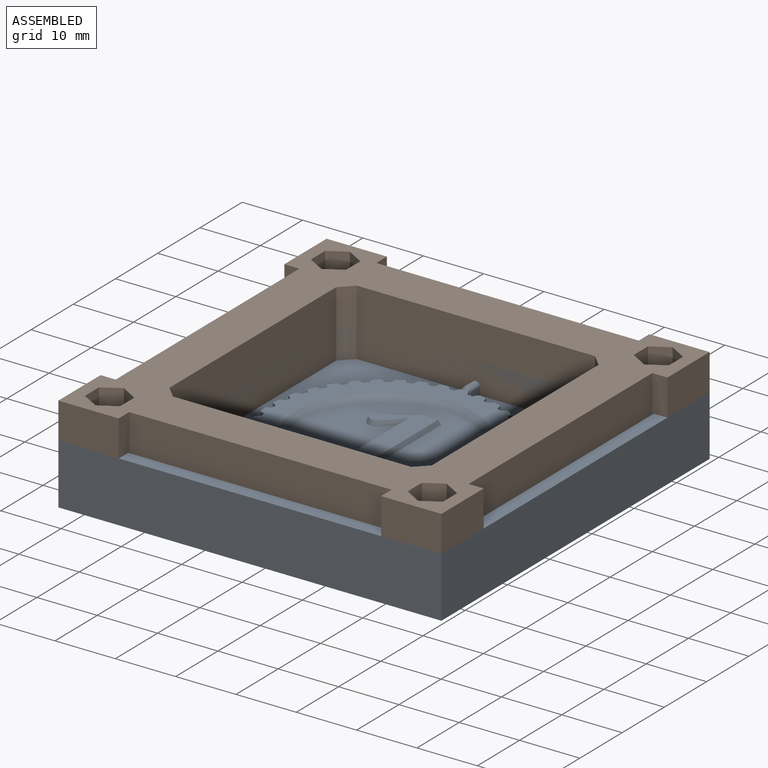
[diagram: assembled view]
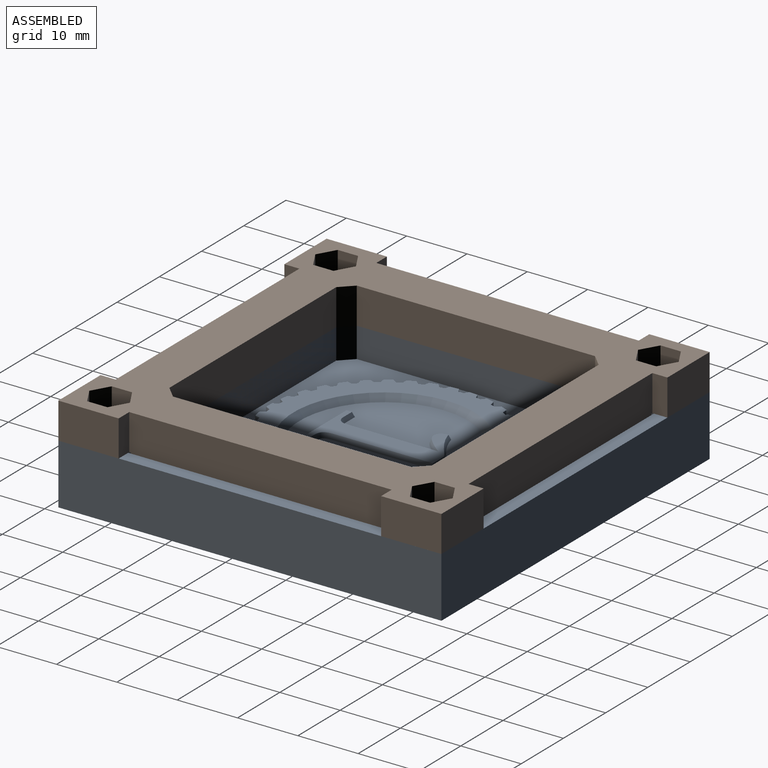
[diagram: assembled view, second angle]
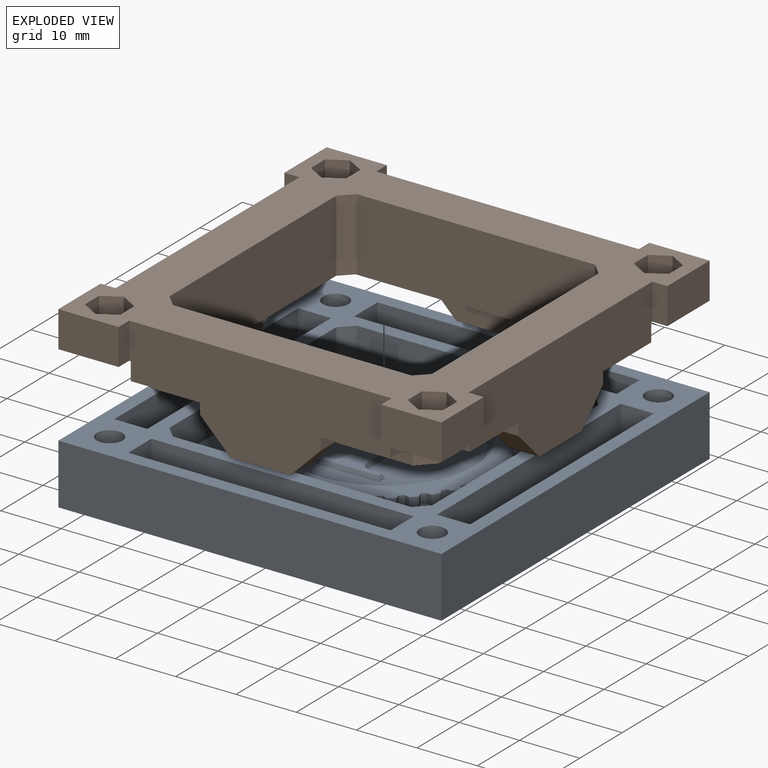
[diagram: exploded view]
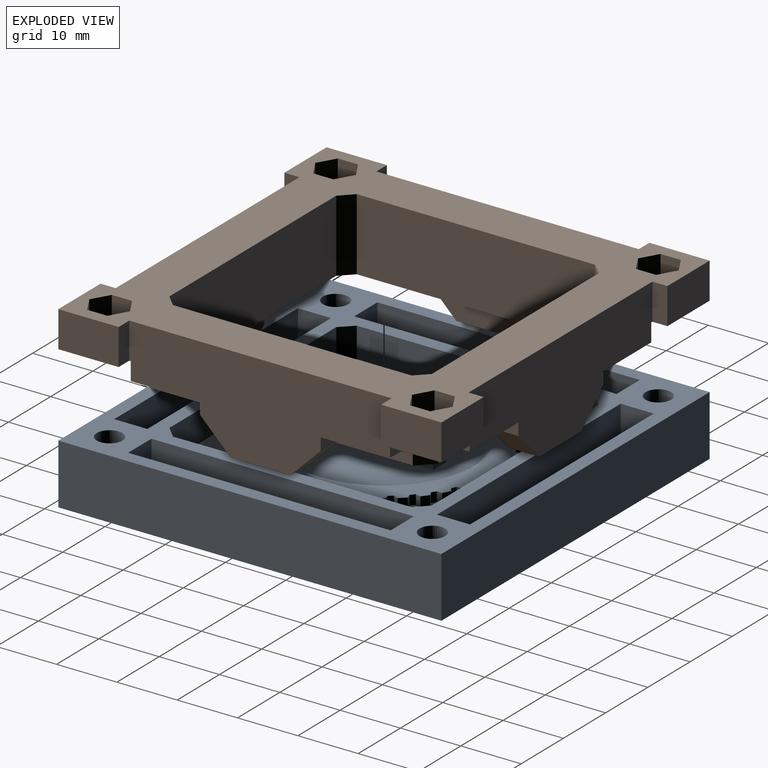
[diagram: exploded view, second angle]
ASSEMBLY  parts=2 mates=3
PART A: 247 faces, bbox 63.8x63.8x10.3 mm
  f0: plane 38.89x38.36mm, normal (0,0,1), area 393.5mm2, adj f1,f2,f10,f11,f12,f13,f14,f15
  f1: plane 1.6x0.82mm, normal (0.9,0.43,0), area 1.4mm2, adj f0,f9,f145,f246
  f2: cylinder r=0.68mm len=2.37mm, axis (0,-1,0), area 2.4mm2, adj f0,f194,f237,f238,f240,f245
  f3: plane 11.5x5.5mm, normal (0,0,1), area 63.2mm2, adj f221,f222,f223,f229
  f4: plane 11.5x5.5mm, normal (0,0,1), area 63.2mm2, adj f222,f223,f224,f230
  f5: plane 11.5x5.5mm, normal (0,0,1), area 63.2mm2, adj f216,f217,f218,f231
  f6: plane 11.5x5.5mm, normal (0,0,1), area 63.2mm2, adj f217,f218,f219,f232
  f7: plane 11.5x5.5mm, normal (0,0,1), area 63.2mm2, adj f211,f212,f213,f234
  f8: plane 11.5x5.5mm, normal (0,0,1), area 63.2mm2, adj f212,f213,f214,f233
  f9: plane 43.5x43.5mm, normal (0,0,1), area 780.5mm2, adj f1,f10,f11,f12,f13,f14,f15,f16
  f10: plane 1.6x0.78mm, normal (0.5,-0.87,0), area 1.4mm2, adj f0,f9,f121,f159
  f11: plane 1.6x0.78mm, normal (0.5,0.87,0), area 1.4mm2, adj f0,f9,f120,f159
  f12: plane 1.6x0.85mm, normal (0.35,-0.94,0), area 1.4mm2, adj f0,f9,f120,f158
  f13: plane 1.6x0.7mm, normal (0.64,0.77,0), area 1.4mm2, adj f0,f9,f119,f158
  f14: plane 1.6x0.89mm, normal (0.19,-0.98,0), area 1.4mm2, adj f0,f9,f119,f157
  f15: plane 1.6x0.68mm, normal (0.75,0.66,0), area 1.4mm2, adj f0,f9,f118,f157
  f16: plane 1.6x0.91mm, normal (0.03,-1,0), area 1.4mm2, adj f0,f9,f118,f156
  f17: plane 1.6x0.77mm, normal (0.85,0.52,0), area 1.4mm2, adj f0,f9,f116,f156
  f18: plane 1.6x0.86mm, normal (-0.3,-0.95,0), area 1.4mm2, adj f0,f9,f117,f155
  f19: plane 1.6x0.88mm, normal (0.98,0.22,0), area 1.4mm2, adj f0,f9,f85,f155
  f20: plane 1.6x0.9mm, normal (-0.14,-0.99,0), area 1.4mm2, adj f0,f9,f116,f154
  f21: plane 1.6x0.84mm, normal (0.93,0.38,0), area 1.4mm2, adj f0,f9,f117,f154
  f22: plane 1.6x0.87mm, normal (0.96,0.27,0), area 1.4mm2, adj f0,f9,f115,f153
  f23: plane 1.6x0.65mm, normal (-0.72,0.7,0), area 1.4mm2, adj f0,f9,f114,f153
  f24: plane 1.6x0.9mm, normal (0.99,0.11,0), area 1.4mm2, adj f0,f9,f114,f152
  f25: plane 1.6x0.73mm, normal (-0.59,0.81,0), area 1.4mm2, adj f0,f9,f113,f152
  f26: plane 1.6x0.9mm, normal (1,-0.06,0), area 1.4mm2, adj f0,f9,f113,f151
  f27: plane 1.6x0.81mm, normal (-0.45,0.89,0), area 1.4mm2, adj f0,f9,f112,f151
  f28: plane 1.6x0.88mm, normal (0.98,-0.22,0), area 1.4mm2, adj f0,f9,f112,f150
  f29: plane 1.6x0.86mm, normal (-0.3,0.95,0), area 1.4mm2, adj f0,f9,f111,f150
  f30: plane 1.6x0.84mm, normal (0.93,-0.38,0), area 1.4mm2, adj f0,f9,f111,f149
  f31: plane 1.6x0.9mm, normal (-0.14,0.99,0), area 1.4mm2, adj f0,f9,f110,f149
  f32: plane 1.6x0.77mm, normal (0.85,-0.52,0), area 1.4mm2, adj f0,f9,f110,f148
  f33: plane 1.6x0.91mm, normal (0.03,1,0), area 1.4mm2, adj f0,f9,f109,f148
  f34: plane 1.6x0.68mm, normal (0.75,-0.66,0), area 1.4mm2, adj f0,f9,f109,f147
  f35: plane 1.6x0.89mm, normal (0.19,0.98,0), area 1.4mm2, adj f0,f9,f108,f147
  f36: plane 1.6x0.7mm, normal (0.64,-0.77,0), area 1.4mm2, adj f0,f9,f108,f146
  f37: plane 1.6x0.85mm, normal (0.35,0.94,0), area 1.4mm2, adj f0,f9,f121,f146
  f38: plane 1.6x0.74mm, normal (-0.82,0.57,0), area 1.4mm2, adj f0,f9,f115,f145
  f39: plane 1.6x0.74mm, normal (0.82,0.57,0), area 1.4mm2, adj f0,f9,f107,f144
  f40: plane 1.6x0.82mm, normal (-0.9,0.43,0), area 1.4mm2, adj f0,f9,f144,f244
  f41: plane 1.6x0.65mm, normal (0.72,0.7,0), area 1.4mm2, adj f0,f9,f106,f143
  f42: plane 1.6x0.87mm, normal (-0.96,0.27,0), area 1.4mm2, adj f0,f9,f107,f143
  f43: plane 1.6x0.73mm, normal (0.59,0.81,0), area 1.4mm2, adj f0,f9,f105,f142
  f44: plane 1.6x0.9mm, normal (-0.99,0.11,0), area 1.4mm2, adj f0,f9,f106,f142
  f45: plane 1.6x0.91mm, normal (-0.03,1,0), area 1.4mm2, adj f0,f9,f104,f141
  f46: plane 1.6x0.77mm, normal (-0.85,-0.52,0), area 1.4mm2, adj f0,f9,f103,f141
  f47: plane 1.6x0.9mm, normal (0.14,0.99,0), area 1.4mm2, adj f0,f9,f103,f140
  f48: plane 1.6x0.84mm, normal (-0.93,-0.38,0), area 1.4mm2, adj f0,f9,f102,f140
  f49: plane 1.6x0.86mm, normal (0.3,0.95,0), area 1.4mm2, adj f0,f9,f102,f139
  f50: plane 1.6x0.88mm, normal (-0.98,-0.22,0), area 1.4mm2, adj f0,f9,f101,f139
  f51: plane 1.6x0.81mm, normal (0.45,0.89,0), area 1.4mm2, adj f0,f9,f101,f138
  f52: plane 1.6x0.9mm, normal (-1,-0.06,0), area 1.4mm2, adj f0,f9,f105,f138
  f53: plane 1.6x0.89mm, normal (-0.19,0.98,0), area 1.4mm2, adj f0,f9,f100,f137
  f54: plane 1.6x0.68mm, normal (-0.75,-0.66,0), area 1.4mm2, adj f0,f9,f104,f137
  f55: plane 1.6x0.85mm, normal (-0.35,0.94,0), area 1.4mm2, adj f0,f9,f99,f136
  f56: plane 1.6x0.7mm, normal (-0.64,-0.77,0), area 1.4mm2, adj f0,f9,f100,f136
  f57: plane 1.6x0.78mm, normal (-0.5,0.87,0), area 1.4mm2, adj f0,f9,f98,f135
  f58: plane 1.6x0.78mm, normal (-0.5,-0.87,0), area 1.4mm2, adj f0,f9,f99,f135
  f59: plane 1.6x0.7mm, normal (-0.64,0.77,0), area 1.4mm2, adj f0,f9,f97,f134
  f60: plane 1.6x0.85mm, normal (-0.35,-0.94,0), area 1.4mm2, adj f0,f9,f98,f134
  f61: plane 1.6x0.68mm, normal (-0.75,0.66,0), area 1.4mm2, adj f0,f9,f96,f133
  f62: plane 1.6x0.89mm, normal (-0.19,-0.98,0), area 1.4mm2, adj f0,f9,f97,f133
  f63: plane 1.6x0.77mm, normal (-0.85,0.52,0), area 1.4mm2, adj f0,f9,f95,f132
  f64: plane 1.6x0.91mm, normal (-0.03,-1,0), area 1.4mm2, adj f0,f9,f96,f132
  f65: plane 1.6x0.88mm, normal (-0.98,0.22,0), area 1.4mm2, adj f0,f9,f94,f131
  f66: plane 1.6x0.86mm, normal (0.3,-0.95,0), area 1.4mm2, adj f0,f9,f93,f131
  f67: plane 1.6x0.84mm, normal (-0.93,0.38,0), area 1.4mm2, adj f0,f9,f93,f130
  f68: plane 1.6x0.9mm, normal (0.14,-0.99,0), area 1.4mm2, adj f0,f9,f95,f130
  f69: plane 1.6x0.9mm, normal (-1,0.06,0), area 1.4mm2, adj f0,f9,f92,f129
  f70: plane 1.6x0.81mm, normal (0.45,-0.89,0), area 1.4mm2, adj f0,f9,f94,f129
  f71: plane 1.6x0.9mm, normal (-0.99,-0.11,0), area 1.4mm2, adj f0,f9,f91,f128
  f72: plane 1.6x0.73mm, normal (0.59,-0.81,0), area 1.4mm2, adj f0,f9,f92,f128
  f73: plane 1.6x0.87mm, normal (-0.96,-0.27,0), area 1.4mm2, adj f0,f9,f90,f127
  f74: plane 1.6x0.65mm, normal (0.72,-0.7,0), area 1.4mm2, adj f0,f9,f91,f127
  f75: plane 1.6x0.82mm, normal (-0.9,-0.43,0), area 1.4mm2, adj f0,f9,f89,f126
  f76: plane 1.6x0.74mm, normal (0.82,-0.57,0), area 1.4mm2, adj f0,f9,f90,f126
  f77: plane 1.6x0.74mm, normal (-0.82,-0.57,0), area 1.4mm2, adj f0,f9,f88,f125
  f78: plane 1.6x0.82mm, normal (0.9,-0.43,0), area 1.4mm2, adj f0,f9,f89,f125
  f79: plane 1.6x0.65mm, normal (-0.72,-0.7,0), area 1.4mm2, adj f0,f9,f87,f124
  f80: plane 1.6x0.87mm, normal (0.96,-0.27,0), area 1.4mm2, adj f0,f9,f88,f124
  f81: plane 1.6x0.73mm, normal (-0.59,-0.81,0), area 1.4mm2, adj f0,f9,f86,f123
  f82: plane 1.6x0.9mm, normal (0.99,-0.11,0), area 1.4mm2, adj f0,f9,f87,f123
  f83: plane 1.6x0.81mm, normal (-0.45,-0.89,0), area 1.4mm2, adj f0,f9,f85,f122
  f84: plane 1.6x0.9mm, normal (1,0.06,0), area 1.4mm2, adj f0,f9,f86,f122
  f85: cylinder r=19.05mm len=1.6mm, axis (0,0,-1), area 2.2mm2, adj f0,f9,f19,f83
  f86: cylinder r=19.05mm len=1.6mm, axis (0,0,-1), area 2.2mm2, adj f0,f9,f81,f84
  f87: cylinder r=19.05mm len=1.6mm, axis (0,0,-1), area 2.2mm2, adj f0,f9,f79,f82
  f88: cylinder r=19.05mm len=1.6mm, axis (0,0,-1), area 2.2mm2, adj f0,f9,f77,f80
  f89: cylinder r=19.05mm len=1.6mm, axis (0,0,-1), area 2.2mm2, adj f0,f9,f75,f78
  f90: cylinder r=19.05mm len=1.6mm, axis (0,0,-1), area 2.2mm2, adj f0,f9,f73,f76
  f91: cylinder r=19.05mm len=1.6mm, axis (0,0,-1), area 2.2mm2, adj f0,f9,f71,f74
  f92: cylinder r=19.05mm len=1.6mm, axis (0,0,-1), area 2.2mm2, adj f0,f9,f69,f72
  f93: cylinder r=19.05mm len=1.6mm, axis (0,0,-1), area 2.2mm2, adj f0,f9,f66,f67
  f94: cylinder r=19.05mm len=1.6mm, axis (0,0,-1), area 2.2mm2, adj f0,f9,f65,f70
  f95: cylinder r=19.05mm len=1.6mm, axis (0,0,-1), area 2.2mm2, adj f0,f9,f63,f68
  f96: cylinder r=19.05mm len=1.6mm, axis (0,0,-1), area 2.2mm2, adj f0,f9,f61,f64
  f97: cylinder r=19.05mm len=1.6mm, axis (0,0,-1), area 2.2mm2, adj f0,f9,f59,f62
  f98: cylinder r=19.05mm len=1.6mm, axis (0,0,-1), area 2.2mm2, adj f0,f9,f57,f60
  f99: cylinder r=19.05mm len=1.6mm, axis (0,0,-1), area 2.2mm2, adj f0,f9,f55,f58
  f100: cylinder r=19.05mm len=1.6mm, axis (0,0,-1), area 2.2mm2, adj f0,f9,f53,f56
  f101: cylinder r=19.05mm len=1.6mm, axis (0,0,-1), area 2.2mm2, adj f0,f9,f50,f51
  f102: cylinder r=19.05mm len=1.6mm, axis (0,0,-1), area 2.2mm2, adj f0,f9,f48,f49
  f103: cylinder r=19.05mm len=1.6mm, axis (0,0,-1), area 2.2mm2, adj f0,f9,f46,f47
  f104: cylinder r=19.05mm len=1.6mm, axis (0,0,-1), area 2.2mm2, adj f0,f9,f45,f54
  f105: cylinder r=19.05mm len=1.6mm, axis (0,0,-1), area 2.2mm2, adj f0,f9,f43,f52
  f106: cylinder r=19.05mm len=1.6mm, axis (0,0,-1), area 2.2mm2, adj f0,f9,f41,f44
  f107: cylinder r=19.05mm len=1.6mm, axis (0,0,-1), area 2.2mm2, adj f0,f9,f39,f42
  f108: cylinder r=19.05mm len=1.6mm, axis (0,0,-1), area 2.2mm2, adj f0,f9,f35,f36
  f109: cylinder r=19.05mm len=1.6mm, axis (0,0,-1), area 2.2mm2, adj f0,f9,f33,f34
  f110: cylinder r=19.05mm len=1.6mm, axis (0,0,-1), area 2.2mm2, adj f0,f9,f31,f32
  f111: cylinder r=19.05mm len=1.6mm, axis (0,0,-1), area 2.2mm2, adj f0,f9,f29,f30
  f112: cylinder r=19.05mm len=1.6mm, axis (0,0,-1), area 2.2mm2, adj f0,f9,f27,f28
  f113: cylinder r=19.05mm len=1.6mm, axis (0,0,-1), area 2.2mm2, adj f0,f9,f25,f26
  f114: cylinder r=19.05mm len=1.6mm, axis (0,0,-1), area 2.2mm2, adj f0,f9,f23,f24
  f115: cylinder r=19.05mm len=1.6mm, axis (0,0,-1), area 2.2mm2, adj f0,f9,f22,f38
  f116: cylinder r=19.05mm len=1.6mm, axis (0,0,-1), area 2.2mm2, adj f0,f9,f17,f20
  f117: cylinder r=19.05mm len=1.6mm, axis (0,0,-1), area 2.2mm2, adj f0,f9,f18,f21
  f118: cylinder r=19.05mm len=1.6mm, axis (0,0,-1), area 2.2mm2, adj f0,f9,f15,f16
  f119: cylinder r=19.05mm len=1.6mm, axis (0,0,-1), area 2.2mm2, adj f0,f9,f13,f14
  f120: cylinder r=19.05mm len=1.6mm, axis (0,0,-1), area 2.2mm2, adj f0,f9,f11,f12
  f121: cylinder r=19.05mm len=1.6mm, axis (0,0,-1), area 2.2mm2, adj f0,f9,f10,f37
  f122: cylinder r=18.25mm len=1.6mm, axis (0,0,-1), area 1.4mm2, adj f0,f9,f83,f84
  f123: cylinder r=18.25mm len=1.6mm, axis (0,0,-1), area 1.4mm2, adj f0,f9,f81,f82
  f124: cylinder r=18.25mm len=1.6mm, axis (0,0,-1), area 1.4mm2, adj f0,f9,f79,f80
  f125: cylinder r=18.25mm len=1.6mm, axis (0,0,-1), area 1.4mm2, adj f0,f9,f77,f78
  f126: cylinder r=18.25mm len=1.6mm, axis (0,0,-1), area 1.4mm2, adj f0,f9,f75,f76
  f127: cylinder r=18.25mm len=1.6mm, axis (0,0,-1), area 1.4mm2, adj f0,f9,f73,f74
  f128: cylinder r=18.25mm len=1.6mm, axis (0,0,-1), area 1.4mm2, adj f0,f9,f71,f72
  f129: cylinder r=18.25mm len=1.6mm, axis (0,0,-1), area 1.4mm2, adj f0,f9,f69,f70
  f130: cylinder r=18.25mm len=1.6mm, axis (0,0,-1), area 1.4mm2, adj f0,f9,f67,f68
  f131: cylinder r=18.25mm len=1.6mm, axis (0,0,-1), area 1.4mm2, adj f0,f9,f65,f66
  f132: cylinder r=18.25mm len=1.6mm, axis (0,0,-1), area 1.4mm2, adj f0,f9,f63,f64
  f133: cylinder r=18.25mm len=1.6mm, axis (0,0,-1), area 1.4mm2, adj f0,f9,f61,f62
  f134: cylinder r=18.25mm len=1.6mm, axis (0,0,-1), area 1.4mm2, adj f0,f9,f59,f60
  f135: cylinder r=18.25mm len=1.6mm, axis (0,0,-1), area 1.4mm2, adj f0,f9,f57,f58
  f136: cylinder r=18.25mm len=1.6mm, axis (0,0,-1), area 1.4mm2, adj f0,f9,f55,f56
  f137: cylinder r=18.25mm len=1.6mm, axis (0,0,-1), area 1.4mm2, adj f0,f9,f53,f54
  f138: cylinder r=18.25mm len=1.6mm, axis (0,0,-1), area 1.4mm2, adj f0,f9,f51,f52
  f139: cylinder r=18.25mm len=1.6mm, axis (0,0,-1), area 1.4mm2, adj f0,f9,f49,f50
  f140: cylinder r=18.25mm len=1.6mm, axis (0,0,-1), area 1.4mm2, adj f0,f9,f47,f48
  f141: cylinder r=18.25mm len=1.6mm, axis (0,0,-1), area 1.4mm2, adj f0,f9,f45,f46
  f142: cylinder r=18.25mm len=1.6mm, axis (0,0,-1), area 1.4mm2, adj f0,f9,f43,f44
  f143: cylinder r=18.25mm len=1.6mm, axis (0,0,-1), area 1.4mm2, adj f0,f9,f41,f42
  f144: cylinder r=18.25mm len=1.6mm, axis (0,0,-1), area 1.4mm2, adj f0,f9,f39,f40
  f145: cylinder r=18.25mm len=1.6mm, axis (0,0,-1), area 1.4mm2, adj f0,f1,f9,f38
  f146: cylinder r=18.25mm len=1.6mm, axis (0,0,-1), area 1.4mm2, adj f0,f9,f36,f37
  f147: cylinder r=18.25mm len=1.6mm, axis (0,0,-1), area 1.4mm2, adj f0,f9,f34,f35
  f148: cylinder r=18.25mm len=1.6mm, axis (0,0,-1), area 1.4mm2, adj f0,f9,f32,f33
  f149: cylinder r=18.25mm len=1.6mm, axis (0,0,-1), area 1.4mm2, adj f0,f9,f30,f31
  f150: cylinder r=18.25mm len=1.6mm, axis (0,0,-1), area 1.4mm2, adj f0,f9,f28,f29
  f151: cylinder r=18.25mm len=1.6mm, axis (0,0,-1), area 1.4mm2, adj f0,f9,f26,f27
  f152: cylinder r=18.25mm len=1.6mm, axis (0,0,-1), area 1.4mm2, adj f0,f9,f24,f25
  f153: cylinder r=18.25mm len=1.6mm, axis (0,0,-1), area 1.4mm2, adj f0,f9,f22,f23
  f154: cylinder r=18.25mm len=1.6mm, axis (0,0,-1), area 1.4mm2, adj f0,f9,f20,f21
  f155: cylinder r=18.25mm len=1.6mm, axis (0,0,-1), area 1.4mm2, adj f0,f9,f18,f19
  f156: cylinder r=18.25mm len=1.6mm, axis (0,0,-1), area 1.4mm2, adj f0,f9,f16,f17
  f157: cylinder r=18.25mm len=1.6mm, axis (0,0,-1), area 1.4mm2, adj f0,f9,f14,f15
  f158: cylinder r=18.25mm len=1.6mm, axis (0,0,-1), area 1.4mm2, adj f0,f9,f12,f13
  f159: cylinder r=18.25mm len=1.6mm, axis (0,0,-1), area 1.4mm2, adj f0,f9,f10,f11
  f160: plane 28.09x28.09mm, normal (0,0,1), area 509.9mm2, adj f161,f162,f163,f164,f165,f166,f167,f168
  f161: cone r=14mm half-angle=45deg, axis (0,0,1), area 128.8mm2, adj f0,f160
  f162: plane 1.48x0.8mm, normal (-0.94,0,0.34), area 1mm2, adj f160,f163,f190,f191
  f163: plane 11.46x0.8mm, normal (0,-0.94,0.34), area 9.5mm2, adj f160,f162,f164,f191
  f164: plane 1.48x0.8mm, normal (0.94,0,0.34), area 1mm2, adj f160,f163,f165,f191
  f165: plane 2.24x0.8mm, normal (0,0.94,0.34), area 1.8mm2, adj f160,f164,f166,f191
  f166: bspline ~0.96x0.85mm, area 0.7mm2, adj f160,f165,f167,f191
  f167: bspline ~0.96x0.72mm, area 0.6mm2, adj f160,f166,f168,f191
  f168: bspline ~0.96x0.77mm, area 0.6mm2, adj f160,f167,f169,f191
  f169: bspline ~0.96x0.83mm, area 0.7mm2, adj f160,f168,f170,f191
  f170: plane 16.66x0.8mm, normal (0.94,0,0.34), area 14.1mm2, adj f160,f169,f171,f191
  f171: plane 3.11x0.8mm, normal (0,0.94,0.34), area 2.5mm2, adj f160,f170,f172,f191
  f172: plane 2.08x1.7mm, normal (-0.56,0.76,0.34), area 2mm2, adj f160,f171,f173,f191
  f173: bspline ~1.51x1.17mm, area 1.3mm2, adj f160,f172,f174,f191
  f174: bspline ~1.3x0.96mm, area 1.1mm2, adj f160,f173,f175,f191
  f175: bspline ~1.13x0.96mm, area 0.9mm2, adj f160,f174,f176,f191
  f176: bspline ~0.99x0.96mm, area 0.7mm2, adj f160,f175,f177,f191
  f177: bspline ~0.96x0.84mm, area 0.6mm2, adj f160,f176,f178,f191
  f178: bspline ~0.96x0.76mm, area 0.6mm2, adj f160,f177,f179,f191
  f179: bspline ~0.96x0.66mm, area 0.5mm2, adj f160,f178,f180,f191
  f180: bspline ~0.96x0.63mm, area 0.5mm2, adj f160,f179,f181,f191
  f181: bspline ~0.96x0.83mm, area 0.7mm2, adj f160,f180,f182,f191
  f182: bspline ~1.01x0.96mm, area 0.9mm2, adj f160,f181,f183,f191
  f183: bspline ~1.14x1.13mm, area 1.1mm2, adj f160,f182,f184,f191
  f184: bspline ~2.05x1.79mm, area 1.7mm2, adj f160,f183,f185,f191
  f185: plane 14.74x0.8mm, normal (-0.94,0,0.34), area 12.2mm2, adj f160,f184,f186,f191
  f186: bspline ~0.96x0.96mm, area 0.8mm2, adj f160,f185,f187,f191
  f187: bspline ~0.96x0.78mm, area 0.6mm2, adj f160,f186,f188,f191
  f188: bspline ~0.96x0.7mm, area 0.5mm2, adj f160,f187,f189,f191
  f189: bspline ~0.96x0.72mm, area 0.6mm2, adj f160,f188,f190,f191
  f190: plane 2.28x0.8mm, normal (0,0.94,0.34), area 1.8mm2, adj f160,f162,f189,f191
  f191: plane 19.48x12.52mm, normal (0,0,1), area 84.9mm2, adj f162,f163,f164,f165,f166,f167,f168,f169
  f192: plane 39.5x5mm, normal (1,0,0), area 197.5mm2, adj f9,f193,f199,f235
  f193: plane 5x2mm, normal (0.71,-0.71,0), area 14.1mm2, adj f9,f192,f194,f235
  f194: plane 39.5x5mm, normal (0,-1,0), area 194.9mm2, adj f2,f9,f193,f195,f235,f236,f237,f238
  f195: plane 5x2mm, normal (-0.71,-0.71,0), area 14.1mm2, adj f9,f194,f196,f235
  f196: plane 39.5x5mm, normal (-1,0,0), area 197.5mm2, adj f9,f195,f197,f235
  f197: plane 5x2mm, normal (-0.71,0.71,0), area 14.1mm2, adj f9,f196,f198,f235
  f198: plane 39.5x5mm, normal (0,1,0), area 197.5mm2, adj f9,f197,f199,f235
  f199: plane 5x2mm, normal (0.71,0.71,0), area 14.1mm2, adj f9,f192,f198,f235
  f200: cylinder r=2.12mm len=10mm, axis (0,0,-1), area 133.5mm2, adj f205,f235
  f201: plane 63.5x10mm, normal (0,1,0), area 635mm2, adj f205,f210,f220,f235
  f202: cylinder r=2.12mm len=10mm, axis (0,0,-1), area 133.5mm2, adj f205,f235
  f203: cylinder r=2.12mm len=10mm, axis (0,0,-1), area 133.5mm2, adj f205,f235
  f204: cylinder r=2.12mm len=10mm, axis (0,0,-1), area 133.5mm2, adj f205,f235
  f205: plane 63.5x63.5mm, normal (0,0,-1), area 3524.5mm2, adj f200,f201,f202,f203,f204,f206,f207,f208
  f206: plane 5.5x5mm, normal (1,0,0), area 27.5mm2, adj f205,f207,f208,f227
  f207: plane 43.5x10mm, normal (0,-1,0), area 320mm2, adj f205,f206,f209,f225,f226,f227,f228,f235
  f208: plane 43.5x10mm, normal (0,1,0), area 320mm2, adj f205,f206,f209,f225,f226,f227,f228,f235
  f209: plane 5.5x5mm, normal (-1,0,0), area 27.5mm2, adj f205,f207,f208,f225
  f210: plane 63.5x10mm, normal (-1,0,0), area 635mm2, adj f201,f205,f215,f235
  f211: plane 5.5x5mm, normal (0,-1,0), area 27.5mm2, adj f7,f205,f212,f213
  f212: plane 43.5x10mm, normal (1,0,0), area 320mm2, adj f7,f8,f205,f211,f214,f233,f234,f235
  f213: plane 43.5x10mm, normal (-1,0,0), area 320mm2, adj f7,f8,f205,f211,f214,f233,f234,f235
  f214: plane 5.5x5mm, normal (0,1,0), area 27.5mm2, adj f8,f205,f212,f213
  f215: plane 63.5x10mm, normal (0,-1,0), area 635mm2, adj f205,f210,f220,f235
  f216: plane 5.5x5mm, normal (1,0,0), area 27.5mm2, adj f5,f205,f217,f218
  f217: plane 43.5x10mm, normal (0,1,0), area 320mm2, adj f5,f6,f205,f216,f219,f231,f232,f235
  f218: plane 43.5x10mm, normal (0,-1,0), area 320mm2, adj f5,f6,f205,f216,f219,f231,f232,f235
  f219: plane 5.5x5mm, normal (-1,0,0), area 27.5mm2, adj f6,f205,f217,f218
  f220: plane 63.5x10mm, normal (1,0,0), area 635mm2, adj f201,f205,f215,f235
  f221: plane 5.5x5mm, normal (0,1,0), area 27.5mm2, adj f3,f205,f222,f223
  f222: plane 43.5x10mm, normal (-1,0,0), area 320mm2, adj f3,f4,f205,f221,f224,f229,f230,f235
  f223: plane 43.5x10mm, normal (1,0,0), area 320mm2, adj f3,f4,f205,f221,f224,f229,f230,f235
  f224: plane 5.5x5mm, normal (0,-1,0), area 27.5mm2, adj f4,f205,f222,f223
  f225: plane 11.5x5.5mm, normal (0,0,1), area 63.2mm2, adj f207,f208,f209,f226
  f226: plane 5.5x5mm, normal (-1,0,0), area 27.5mm2, adj f207,f208,f225,f235
  f227: plane 11.5x5.5mm, normal (0,0,1), area 63.2mm2, adj f206,f207,f208,f228
  f228: plane 5.5x5mm, normal (1,0,0), area 27.5mm2, adj f207,f208,f227,f235
  f229: plane 5.5x5mm, normal (0,1,0), area 27.5mm2, adj f3,f222,f223,f235
  f230: plane 5.5x5mm, normal (0,-1,0), area 27.5mm2, adj f4,f222,f223,f235
  f231: plane 5.5x5mm, normal (1,0,0), area 27.5mm2, adj f5,f217,f218,f235
  f232: plane 5.5x5mm, normal (-1,0,0), area 27.5mm2, adj f6,f217,f218,f235
  f233: plane 5.5x5mm, normal (0,1,0), area 27.5mm2, adj f8,f212,f213,f235
  f234: plane 5.5x5mm, normal (0,-1,0), area 27.5mm2, adj f7,f212,f213,f235
  f235: plane 63.5x63.5mm, normal (0,0,1), area 1134.3mm2, adj f192,f193,f194,f195,f196,f197,f198,f199
  f236: plane 2.21x1.32mm, normal (-1,0,0), area 2.9mm2, adj f9,f194,f239,f243
  f237: plane 2.21x1.32mm, normal (1,0,0), area 2.9mm2, adj f2,f9,f194,f245
  f238: plane 2.21x0.02mm, normal (0,0,1), area 0.1mm2, adj f2,f194,f239,f241
  f239: cylinder r=0.68mm len=2.37mm, axis (0,1,0), area 2.4mm2, adj f0,f194,f236,f238,f242,f243
  f240: cone r=0.18mm half-angle=45deg, axis (0,1,0), area 0.2mm2, adj f0,f2,f241
  f241: plane 0.4x0.4mm, normal (0,-0.71,0.71), area 0mm2, adj f0,f238,f240,f242
  f242: cone r=0.18mm half-angle=45deg, axis (0,1,0), area 0.2mm2, adj f0,f239,f241
  f243: plane 1.68x0.57mm, normal (-0.93,-0.36,0), area 0.8mm2, adj f0,f9,f236,f239,f244
  f244: cylinder r=19.05mm len=1.6mm, axis (0,0,-1), area 0.3mm2, adj f0,f9,f40,f243
  f245: plane 1.68x0.57mm, normal (0.93,-0.36,0), area 0.8mm2, adj f0,f2,f9,f237,f246
  f246: cylinder r=19.05mm len=1.6mm, axis (0,0,-1), area 0.3mm2, adj f0,f1,f9,f245
PART B: 122 faces, bbox 63.5x63.5x16 mm
  f0: cylinder r=2.12mm len=4.25mm, axis (0,0,-1), area 21.4mm2, adj f10,f121
  f1: cylinder r=2.12mm len=4.25mm, axis (0,0,-1), area 21.4mm2, adj f18,f120
  f2: cylinder r=2.12mm len=4.25mm, axis (0,0,-1), area 21.4mm2, adj f15,f119
  f3: cylinder r=2.12mm len=4.25mm, axis (0,0,-1), area 21.4mm2, adj f13,f118
  f4: plane 63.5x63.5mm, normal (0,0,1), area 1595.1mm2, adj f19,f20,f21,f22,f23,f24,f25,f26
  f5: plane 18x4mm, normal (0,-1,0), area 56mm2, adj f43,f77,f84,f85
  f6: plane 18x4mm, normal (-1,0,0), area 56mm2, adj f44,f77,f86,f87
  f7: plane 18x4mm, normal (0,1,0), area 56mm2, adj f40,f77,f88,f89
  f8: plane 18x4mm, normal (1,0,0), area 56mm2, adj f42,f77,f82,f83
  f9: plane 5x2mm, normal (0,1,0), area 10mm2, adj f23,f60,f70,f86
  f10: plane 10.25x10.25mm, normal (0,0,-1), area 85.2mm2, adj f0,f23,f24,f25,f26,f27,f28,f53
  f11: plane 5x2mm, normal (0,-1,0), area 10mm2, adj f23,f58,f64,f87
  f12: plane 5x2mm, normal (-1,0,0), area 10mm2, adj f28,f56,f72,f84
  f13: plane 10.25x10.25mm, normal (0,0,-1), area 85.2mm2, adj f3,f28,f29,f30,f31,f32,f33,f49
  f14: plane 5x2mm, normal (1,0,0), area 10mm2, adj f28,f54,f63,f85
  f15: plane 10.25x10.25mm, normal (0,0,-1), area 85.2mm2, adj f2,f33,f34,f35,f36,f37,f38,f45
  f16: plane 5x2mm, normal (0,1,0), area 10mm2, adj f33,f50,f62,f83
  f17: plane 5x2mm, normal (1,0,0), area 10mm2, adj f38,f48,f68,f88
  f18: plane 10.25x10.25mm, normal (0,0,-1), area 85.2mm2, adj f1,f19,f20,f21,f22,f23,f38,f47
  f19: plane 6x2.5mm, normal (-1,0,0), area 15mm2, adj f4,f18,f20,f38
  f20: plane 10x6mm, normal (0,-1,0), area 60mm2, adj f4,f18,f19,f21
  f21: plane 10x6mm, normal (1,0,0), area 60mm2, adj f4,f18,f20,f22
  f22: plane 6x2.5mm, normal (0,1,0), area 15mm2, adj f4,f18,f21,f23
  f23: plane 43.5x16mm, normal (1,0,0), area 505mm2, adj f4,f9,f10,f11,f18,f22,f24,f44
  f24: plane 6x2.5mm, normal (0,-1,0), area 15mm2, adj f4,f10,f23,f25
  f25: plane 10x6mm, normal (1,0,0), area 60mm2, adj f4,f10,f24,f26
  f26: plane 10x6mm, normal (0,1,0), area 60mm2, adj f4,f10,f25,f27
  f27: plane 6x2.5mm, normal (-1,0,0), area 15mm2, adj f4,f10,f26,f28
  f28: plane 43.5x16mm, normal (0,1,0), area 505mm2, adj f4,f10,f12,f13,f14,f27,f29,f43
  f29: plane 6x2.5mm, normal (1,0,0), area 15mm2, adj f4,f13,f28,f30
  f30: plane 10x6mm, normal (0,1,0), area 60mm2, adj f4,f13,f29,f31
  f31: plane 10x6mm, normal (-1,0,0), area 60mm2, adj f4,f13,f30,f32
  f32: plane 6x2.5mm, normal (0,-1,0), area 15mm2, adj f4,f13,f31,f33
  f33: plane 43.5x16mm, normal (-1,0,0), area 505mm2, adj f4,f13,f15,f16,f32,f34,f41,f42
  f34: plane 6x2.5mm, normal (0,1,0), area 15mm2, adj f4,f15,f33,f35
  f35: plane 10x6mm, normal (-1,0,0), area 60mm2, adj f4,f15,f34,f36
  f36: plane 10x6mm, normal (0,-1,0), area 60mm2, adj f4,f15,f35,f37
  f37: plane 6x2.5mm, normal (1,0,0), area 15mm2, adj f4,f15,f36,f38
  f38: plane 43.5x16mm, normal (0,-1,0), area 505mm2, adj f4,f15,f17,f18,f19,f37,f39,f40
  f39: plane 5x2mm, normal (-1,0,0), area 10mm2, adj f38,f46,f61,f89
  f40: plane 10x5mm, normal (0,0,-1), area 50mm2, adj f7,f38,f88,f89
  f41: plane 5x2mm, normal (0,-1,0), area 10mm2, adj f33,f52,f74,f82
  f42: plane 10x5mm, normal (0,0,-1), area 50mm2, adj f8,f33,f82,f83
  f43: plane 10x5mm, normal (0,0,-1), area 50mm2, adj f5,f28,f84,f85
  f44: plane 10x5mm, normal (0,0,-1), area 50mm2, adj f6,f23,f86,f87
  f45: plane 5x3mm, normal (-1,0,0), area 15mm2, adj f15,f38,f46,f61
  f46: plane 11.5x5mm, normal (0,0,-1), area 57.5mm2, adj f38,f39,f45,f61
  f47: plane 5x3mm, normal (1,0,0), area 15mm2, adj f18,f38,f48,f68
  f48: plane 11.5x5mm, normal (0,0,-1), area 57.5mm2, adj f17,f38,f47,f68
  f49: plane 5x3mm, normal (0,1,0), area 15mm2, adj f13,f33,f50,f62
  f50: plane 11.5x5mm, normal (0,0,-1), area 57.5mm2, adj f16,f33,f49,f62
  f51: plane 5x3mm, normal (0,-1,0), area 15mm2, adj f15,f33,f52,f74
  f52: plane 11.5x5mm, normal (0,0,-1), area 57.5mm2, adj f33,f41,f51,f74
  f53: plane 5x3mm, normal (1,0,0), area 15mm2, adj f10,f28,f54,f63
  f54: plane 11.5x5mm, normal (0,0,-1), area 57.5mm2, adj f14,f28,f53,f63
  f55: plane 5x3mm, normal (-1,0,0), area 15mm2, adj f13,f28,f56,f72
  f56: plane 11.5x5mm, normal (0,0,-1), area 57.5mm2, adj f12,f28,f55,f72
  f57: plane 5x3mm, normal (0,-1,0), area 15mm2, adj f18,f23,f58,f64
  f58: plane 11.5x5mm, normal (0,0,-1), area 57.5mm2, adj f11,f23,f57,f64
  f59: plane 5x3mm, normal (0,1,0), area 15mm2, adj f10,f23,f60,f70
  f60: plane 11.5x5mm, normal (0,0,-1), area 57.5mm2, adj f9,f23,f59,f70
  f61: plane 12.75x6mm, normal (0,-1,0), area 36.5mm2, adj f15,f39,f45,f46,f75,f77,f89
  f62: plane 12.75x6mm, normal (-1,0,0), area 36.5mm2, adj f13,f16,f49,f50,f73,f77,f83
  f63: plane 12.75x6mm, normal (0,1,0), area 36.5mm2, adj f10,f14,f53,f54,f71,f77,f85
  f64: plane 12.75x6mm, normal (1,0,0), area 36.5mm2, adj f11,f18,f57,f58,f69,f77,f87
  f65: plane 39.5x12mm, normal (0,1,0), area 474mm2, adj f4,f77,f79,f80
  f66: plane 39.5x12mm, normal (1,0,0), area 474mm2, adj f4,f77,f79,f81
  f67: plane 39.5x12mm, normal (0,-1,0), area 474mm2, adj f4,f77,f78,f81
  f68: plane 12.75x6mm, normal (0,-1,0), area 36.5mm2, adj f17,f18,f47,f48,f69,f77,f88
  f69: plane 6x2.5mm, normal (0.71,-0.71,0), area 21.2mm2, adj f18,f64,f68,f77
  f70: plane 12.75x6mm, normal (1,0,0), area 36.5mm2, adj f9,f10,f59,f60,f71,f77,f86
  f71: plane 6x2.5mm, normal (0.71,0.71,0), area 21.2mm2, adj f10,f63,f70,f77
  f72: plane 12.75x6mm, normal (0,1,0), area 36.5mm2, adj f12,f13,f55,f56,f73,f77,f84
  f73: plane 6x2.5mm, normal (-0.71,0.71,0), area 21.2mm2, adj f13,f62,f72,f77
  f74: plane 12.75x6mm, normal (-1,0,0), area 36.5mm2, adj f15,f41,f51,f52,f75,f77,f82
  f75: plane 6x2.5mm, normal (-0.71,-0.71,0), area 21.2mm2, adj f15,f61,f74,f77
  f76: plane 39.5x12mm, normal (-1,0,0), area 474mm2, adj f4,f77,f78,f80
  f77: plane 48.5x48.5mm, normal (0,0,-1), area 455.5mm2, adj f5,f6,f7,f8,f61,f62,f63,f64
  f78: plane 12x2mm, normal (-0.71,-0.71,0), area 33.9mm2, adj f4,f67,f76,f77
  f79: plane 12x2mm, normal (0.71,0.71,0), area 33.9mm2, adj f4,f65,f66,f77
  f80: plane 12x2mm, normal (-0.71,0.71,0), area 33.9mm2, adj f4,f65,f76,f77
  f81: plane 12x2mm, normal (0.71,-0.71,0), area 33.9mm2, adj f4,f66,f67,f77
  f82: plane 5x5mm, normal (0,-0.71,-0.71), area 35.4mm2, adj f8,f33,f41,f42,f74
  f83: plane 5x5mm, normal (0,0.71,-0.71), area 35.4mm2, adj f8,f16,f33,f42,f62
  f84: plane 5x5mm, normal (-0.71,0,-0.71), area 35.4mm2, adj f5,f12,f28,f43,f72
  f85: plane 5x5mm, normal (0.71,0,-0.71), area 35.4mm2, adj f5,f14,f28,f43,f63
  f86: plane 5x5mm, normal (0,0.71,-0.71), area 35.4mm2, adj f6,f9,f23,f44,f70
  f87: plane 5x5mm, normal (0,-0.71,-0.71), area 35.4mm2, adj f6,f11,f23,f44,f64
  f88: plane 5x5mm, normal (0.71,0,-0.71), area 35.4mm2, adj f7,f17,f38,f40,f68
  f89: plane 5x5mm, normal (-0.71,0,-0.71), area 35.4mm2, adj f7,f38,f39,f40,f61
  f90: plane 4x2.92mm, normal (-0.5,0.87,0), area 13.5mm2, adj f4,f91,f95,f96
  f91: plane 4x3.37mm, normal (-1,0,0), area 13.5mm2, adj f4,f90,f92,f96
  f92: plane 4x2.92mm, normal (-0.5,-0.87,0), area 13.5mm2, adj f4,f91,f93,f96
  f93: plane 4x2.92mm, normal (0.5,-0.87,0), area 13.5mm2, adj f4,f92,f94,f96
  f94: plane 4x3.37mm, normal (1,0,0), area 13.5mm2, adj f4,f93,f95,f96
  f95: plane 4x2.92mm, normal (0.5,0.87,0), area 13.5mm2, adj f4,f90,f94,f96
  f96: plane 6.74x5.84mm, normal (0,0,1), area 29.5mm2, adj f90,f91,f92,f93,f94,f95
  f97: plane 4x2.92mm, normal (-0.5,0.87,0), area 13.5mm2, adj f4,f98,f102,f103
  f98: plane 4x3.37mm, normal (-1,0,0), area 13.5mm2, adj f4,f97,f99,f103
  f99: plane 4x2.92mm, normal (-0.5,-0.87,0), area 13.5mm2, adj f4,f98,f100,f103
  f100: plane 4x2.92mm, normal (0.5,-0.87,0), area 13.5mm2, adj f4,f99,f101,f103
  f101: plane 4x3.37mm, normal (1,0,0), area 13.5mm2, adj f4,f100,f102,f103
  f102: plane 4x2.92mm, normal (0.5,0.87,0), area 13.5mm2, adj f4,f97,f101,f103
  f103: plane 6.74x5.84mm, normal (0,0,1), area 29.5mm2, adj f97,f98,f99,f100,f101,f102
  f104: plane 6.74x5.84mm, normal (0,0,1), area 29.5mm2, adj f105,f106,f107,f108,f109,f110
  f105: plane 4x2.92mm, normal (-0.5,-0.87,0), area 13.5mm2, adj f4,f104,f106,f110
  f106: plane 4x2.92mm, normal (0.5,-0.87,0), area 13.5mm2, adj f4,f104,f105,f107
  f107: plane 4x3.37mm, normal (1,0,0), area 13.5mm2, adj f4,f104,f106,f108
  f108: plane 4x2.92mm, normal (0.5,0.87,0), area 13.5mm2, adj f4,f104,f107,f109
  f109: plane 4x2.92mm, normal (-0.5,0.87,0), area 13.5mm2, adj f4,f104,f108,f110
  f110: plane 4x3.37mm, normal (-1,0,0), area 13.5mm2, adj f4,f104,f105,f109
  f111: plane 6.74x5.84mm, normal (0,0,1), area 29.5mm2, adj f112,f113,f114,f115,f116,f117
  f112: plane 4x3.37mm, normal (1,0,0), area 13.5mm2, adj f4,f111,f113,f117
  f113: plane 4x2.92mm, normal (0.5,0.87,0), area 13.5mm2, adj f4,f111,f112,f114
  f114: plane 4x2.92mm, normal (-0.5,0.87,0), area 13.5mm2, adj f4,f111,f113,f115
  f115: plane 4x3.37mm, normal (-1,0,0), area 13.5mm2, adj f4,f111,f114,f116
  f116: plane 4x2.92mm, normal (-0.5,-0.87,0), area 13.5mm2, adj f4,f111,f115,f117
  f117: plane 4x2.92mm, normal (0.5,-0.87,0), area 13.5mm2, adj f4,f111,f112,f116
  f118: plane 4.25x4.25mm, normal (0,0,-1), area 14.2mm2, adj f3
  f119: plane 4.25x4.25mm, normal (0,0,-1), area 14.2mm2, adj f2
  f120: plane 4.25x4.25mm, normal (0,0,-1), area 14.2mm2, adj f1
  f121: plane 4.25x4.25mm, normal (0,0,-1), area 14.2mm2, adj f0
PLACE A t=(-0.78,-35.28,52.64)mm
PLACE B rot(axis=(-0.45,0.17,-0.88),0deg) t=(-0.78,-35.28,66.64)mm
MATE cylindrical A.f204 <-> B.f2  axis (0,0,-1) through (-27.53,-62.03,57.64)mm
MATE cylindrical A.f203 <-> B.f1  axis (0,0,-1) through (25.97,-62.03,62.64)mm
MATE planar A.f161 <-> B.f40  axis (0,0,-1) through (-0.78,-35.28,52.64)mm
